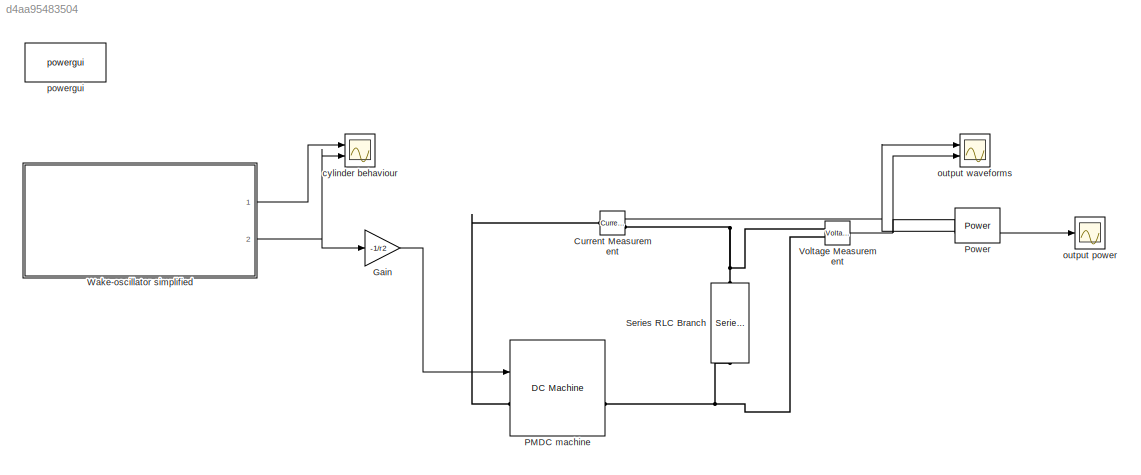
MODEL slx_d4aa95483504
KIND model
CONFIG AbsTol = auto
CONFIG EnableMultiTasking = off
CONFIG FixedStep = 0.0001
CONFIG MaxStep = auto
CONFIG MinStep = auto
CONFIG RelTol = 1e-3
CONFIG SampleTimeConstraint = Unconstrained
CONFIG Solver = FixedStepAuto
CONFIG SolverName = FixedStepAuto
CONFIG StartTime = 0.0
CONFIG StopTime = 50
BLOCK [Reference] Current Measurement  REF=powerlib/Measurements/Current Measurement
  Ports = [0, 1, 0, 0, 0, 1, 1]
  SourceBlock = powerlib/Measurements/Current Measurement
  SourceProductBaseCode = PS
  SourceProductName = Simscape Electrical
  SourceType = Current Measurement
  UserDataPersistent = on
BLOCK [Gain] Gain
  Gain = -1/r2
  OutDataTypeStr = Inherit: Inherit via internal rule
  ParamDataTypeStr = Inherit: Inherit via internal rule
  SaturateOnIntegerOverflow = off
BLOCK [Reference] PMDC machine   REF=powerlib/Machines/DC Machine
  Ports = [1, 1, 0, 0, 0, 1, 1]
  SourceBlock = powerlib/Machines/DC Machine
  SourceProductBaseCode = PS
  SourceProductName = Simscape Electrical
  SourceType = DC machine
BLOCK [Reference] Power  REF=powerlib_meascontrol/Measurements/Power
  Ports = [2, 2]
  SourceBlock = powerlib_meascontrol/Measurements/Power
  SourceProductBaseCode = PS
  SourceProductName = Simscape Electrical
  SourceType = Power
BLOCK [Reference] Series RLC Branch  REF=powerlib/Elements/Series RLC Branch
  Ports = [0, 0, 0, 0, 0, 1, 1]
  SourceBlock = powerlib/Elements/Series RLC Branch
  SourceProductBaseCode = PS
  SourceProductName = Simscape Electrical
  SourceType = Series RLC Branch
BLOCK [Reference] Voltage Measurement  REF=powerlib/Measurements/Voltage Measurement
  Ports = [0, 1, 0, 0, 0, 2]
  SourceBlock = powerlib/Measurements/Voltage Measurement
  SourceProductBaseCode = PS
  SourceProductName = Simscape Electrical
  SourceType = Voltage Measurement
  UserDataPersistent = on
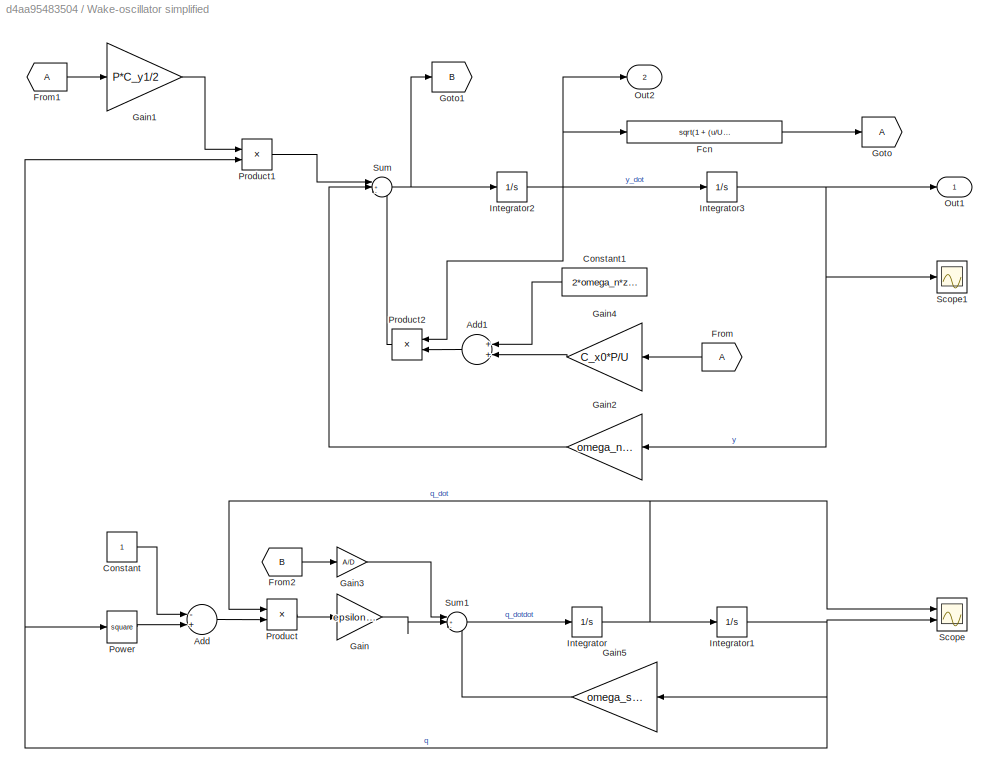
BLOCK [SubSystem] Wake-oscillator simplified
  Ports = [0, 2]
  RequestExecContextInheritance = off
BLOCK [Sum] Wake-oscillator simplified/Add
  InputSameDT = off
  Inputs = -+
  OutDataTypeStr = Inherit: Inherit via internal rule
  Ports = [2, 1]
  SaturateOnIntegerOverflow = off
BLOCK [Sum] Wake-oscillator simplified/Add1
  InputSameDT = off
  OutDataTypeStr = Inherit: Inherit via internal rule
  Ports = [2, 1]
  SaturateOnIntegerOverflow = off
BLOCK [Constant] Wake-oscillator simplified/Constant
BLOCK [Constant] Wake-oscillator simplified/Constant1
  Value = 2*omega_n*zeta
BLOCK [Fcn] Wake-oscillator simplified/Fcn
  Expr = sqrt(1 + (u/U)^2)
BLOCK [From] Wake-oscillator simplified/From
BLOCK [From] Wake-oscillator simplified/From1
BLOCK [From] Wake-oscillator simplified/From2
  GotoTag = B
BLOCK [Gain] Wake-oscillator simplified/Gain
  Gain = epsilon*omega_s
  OutDataTypeStr = Inherit: Inherit via internal rule
  ParamDataTypeStr = Inherit: Inherit via internal rule
  SaturateOnIntegerOverflow = off
BLOCK [Gain] Wake-oscillator simplified/Gain1
  Gain = P*C_y1/2
  OutDataTypeStr = Inherit: Inherit via internal rule
  ParamDataTypeStr = Inherit: Inherit via internal rule
  SaturateOnIntegerOverflow = off
BLOCK [Gain] Wake-oscillator simplified/Gain2
  Gain = omega_n^2
  OutDataTypeStr = Inherit: Inherit via internal rule
  ParamDataTypeStr = Inherit: Inherit via internal rule
  SaturateOnIntegerOverflow = off
BLOCK [Gain] Wake-oscillator simplified/Gain3
  Gain = A/D
  OutDataTypeStr = Inherit: Inherit via internal rule
  ParamDataTypeStr = Inherit: Inherit via internal rule
  SaturateOnIntegerOverflow = off
BLOCK [Gain] Wake-oscillator simplified/Gain4
  Gain = C_x0*P/U
  OutDataTypeStr = Inherit: Inherit via internal rule
  ParamDataTypeStr = Inherit: Inherit via internal rule
  SaturateOnIntegerOverflow = off
BLOCK [Gain] Wake-oscillator simplified/Gain5
  Gain = omega_s^2
  OutDataTypeStr = Inherit: Inherit via internal rule
  ParamDataTypeStr = Inherit: Inherit via internal rule
  SaturateOnIntegerOverflow = off
BLOCK [Goto] Wake-oscillator simplified/Goto
BLOCK [Goto] Wake-oscillator simplified/Goto1
  GotoTag = B
BLOCK [Integrator] Wake-oscillator simplified/Integrator
  Ports = [1, 1]
BLOCK [Integrator] Wake-oscillator simplified/Integrator1
  InitialCondition = 0.001
  Ports = [1, 1]
BLOCK [Integrator] Wake-oscillator simplified/Integrator2
  Ports = [1, 1]
BLOCK [Integrator] Wake-oscillator simplified/Integrator3
  Ports = [1, 1]
BLOCK [Outport] Wake-oscillator simplified/Out1
  IconDisplay = Signal name
BLOCK [Outport] Wake-oscillator simplified/Out2
  IconDisplay = Signal name
  Port = 2
BLOCK [Math] Wake-oscillator simplified/Power
  Operator = square
  Ports = [1, 1]
BLOCK [Product] Wake-oscillator simplified/Product
  InputSameDT = off
  OutDataTypeStr = Inherit: Inherit via internal rule
  Ports = [2, 1]
  RndMeth = Floor
  SaturateOnIntegerOverflow = off
BLOCK [Product] Wake-oscillator simplified/Product1
  InputSameDT = off
  OutDataTypeStr = Inherit: Inherit via internal rule
  Ports = [2, 1]
  RndMeth = Floor
  SaturateOnIntegerOverflow = off
BLOCK [Product] Wake-oscillator simplified/Product2
  InputSameDT = off
  OutDataTypeStr = Inherit: Inherit via internal rule
  Ports = [2, 1]
  RndMeth = Floor
  SaturateOnIntegerOverflow = off
BLOCK [Scope] Wake-oscillator simplified/Scope
  Floating = off
  NumInputPorts = 2
  Ports = [2]
  ScopeSpecificationString = Simulink.scopes.TimeScopeBlockCfg('CurrentConfiguration', extmgr.ConfigurationSet(extmgr.Configuration('Core','General UI',true),extmgr.Configuration('Core','Source UI',true),extmgr.Configuration('Sources','WiredSimulink',true),extmgr.Configuration('Visuals','Time Domain',true,'SerializedDisplays',{struct('MinYLimReal','-2.85224','MaxYLimReal','2.85224','YLabelReal','','MinYLimMag','0.00000','MaxY...<+1359ch>
BLOCK [Scope] Wake-oscillator simplified/Scope1
  Floating = off
  NumInputPorts = 1
  Ports = [1]
  ScopeSpecificationString = Simulink.scopes.TimeScopeBlockCfg('CurrentConfiguration', extmgr.ConfigurationSet(extmgr.Configuration('Core','General UI',true),extmgr.Configuration('Core','Source UI',true),extmgr.Configuration('Sources','WiredSimulink',true,'DataLoggingVariableName','ScopeData1'),extmgr.Configuration('Visuals','Time Domain',true,'SerializedDisplays',{struct('MinYLimReal','-0.07666','MaxYLimReal','0.07666','YLab...<+2008ch>
BLOCK [Sum] Wake-oscillator simplified/Sum
  IconShape = round
  InputSameDT = off
  Inputs = |+--
  OutDataTypeStr = Inherit: Inherit via internal rule
  Ports = [3, 1]
  SaturateOnIntegerOverflow = off
BLOCK [Sum] Wake-oscillator simplified/Sum1
  IconShape = round
  InputSameDT = off
  Inputs = |+--
  OutDataTypeStr = Inherit: Inherit via internal rule
  Ports = [3, 1]
  SaturateOnIntegerOverflow = off
BLOCK [Scope] cylinder behaviour
  Floating = off
  NumInputPorts = 2
  Ports = [2]
  ScopeSpecificationString = Simulink.scopes.TimeScopeBlockCfg('CurrentConfiguration', extmgr.ConfigurationSet(extmgr.Configuration('Core','General UI',true),extmgr.Configuration('Core','Source UI',true),extmgr.Configuration('Sources','WiredSimulink',true,'DataLoggingVariableName','ScopeData1'),extmgr.Configuration('Visuals','Time Domain',true,'SerializedDisplays',{struct('MinYLimReal','-0.48569','MaxYLimReal','0.48569','YLab...<+1831ch>
BLOCK [Scope] output power
  Floating = off
  NumInputPorts = 1
  Ports = [1]
  ScopeSpecificationString = Simulink.scopes.TimeScopeBlockCfg('CurrentConfiguration', extmgr.ConfigurationSet(extmgr.Configuration('Core','General UI',true),extmgr.Configuration('Core','Source UI',true),extmgr.Configuration('Sources','WiredSimulink',true,'DataLoggingVariableName','ScopeData2'),extmgr.Configuration('Visuals','Time Domain',true,'SerializedDisplays',{struct('MinYLimReal','-0.00936','MaxYLimReal','0.08427','YLab...<+1711ch>
BLOCK [Scope] output waveforms
  Floating = off
  NumInputPorts = 2
  Ports = [2]
  ScopeSpecificationString = Simulink.scopes.TimeScopeBlockCfg('CurrentConfiguration', extmgr.ConfigurationSet(extmgr.Configuration('Core','General UI',true),extmgr.Configuration('Core','Source UI',true),extmgr.Configuration('Sources','WiredSimulink',true,'DataLoggingVariableName','ScopeData3'),extmgr.Configuration('Visuals','Time Domain',true,'SerializedDisplays',{struct('MinYLimReal','-8.54807','MaxYLimReal','8.54855','YLab...<+1810ch>
BLOCK [Reference] powergui  REF=powerlib/powergui
  Ports = []
  Priority = 1
  SourceBlock = powerlib/powergui
  SourceProductBaseCode = PS
  SourceProductName = Simscape Electrical
  SourceType = PSB option menu block
NET Current Measurement:1 -> Power:2, output waveforms:1
LINE Gain:1 -> PMDC machine :1
LINE Power:1 -> output power:1
NET Voltage Measurement:1 -> Power:1, output waveforms:2
LINE Wake-oscillator simplified/Add1:1 -> Wake-oscillator simplified/Product2:2
LINE Wake-oscillator simplified/Add:1 -> Wake-oscillator simplified/Product:2
LINE Wake-oscillator simplified/Constant1:1 -> Wake-oscillator simplified/Add1:1
LINE Wake-oscillator simplified/Constant:1 -> Wake-oscillator simplified/Add:1
LINE Wake-oscillator simplified/Fcn:1 -> Wake-oscillator simplified/Goto:1
LINE Wake-oscillator simplified/From1:1 -> Wake-oscillator simplified/Gain1:1
LINE Wake-oscillator simplified/From2:1 -> Wake-oscillator simplified/Gain3:1
LINE Wake-oscillator simplified/From:1 -> Wake-oscillator simplified/Gain4:1
LINE Wake-oscillator simplified/Gain1:1 -> Wake-oscillator simplified/Product1:1
LINE Wake-oscillator simplified/Gain2:1 -> Wake-oscillator simplified/Sum:2
LINE Wake-oscillator simplified/Gain3:1 -> Wake-oscillator simplified/Sum1:1
LINE Wake-oscillator simplified/Gain4:1 -> Wake-oscillator simplified/Add1:2
LINE Wake-oscillator simplified/Gain5:1 -> Wake-oscillator simplified/Sum1:3
LINE Wake-oscillator simplified/Gain:1 -> Wake-oscillator simplified/Sum1:2
NET Wake-oscillator simplified/Integrator1:1 -> Wake-oscillator simplified/Gain5:1, Wake-oscillator simplified/Power:1, Wake-oscillator simplified/Product1:2, Wake-oscillator simplified/Scope:2
NET Wake-oscillator simplified/Integrator2:1 -> Wake-oscillator simplified/Fcn:1, Wake-oscillator simplified/Integrator3:1, Wake-oscillator simplified/Out2:1, Wake-oscillator simplified/Product2:1
NET Wake-oscillator simplified/Integrator3:1 -> Wake-oscillator simplified/Gain2:1, Wake-oscillator simplified/Out1:1, Wake-oscillator simplified/Scope1:1
NET Wake-oscillator simplified/Integrator:1 -> Wake-oscillator simplified/Integrator1:1, Wake-oscillator simplified/Product:1, Wake-oscillator simplified/Scope:1
LINE Wake-oscillator simplified/Power:1 -> Wake-oscillator simplified/Add:2
LINE Wake-oscillator simplified/Product1:1 -> Wake-oscillator simplified/Sum:1
LINE Wake-oscillator simplified/Product2:1 -> Wake-oscillator simplified/Sum:3
LINE Wake-oscillator simplified/Product:1 -> Wake-oscillator simplified/Gain:1
LINE Wake-oscillator simplified/Sum1:1 -> Wake-oscillator simplified/Integrator:1
NET Wake-oscillator simplified/Sum:1 -> Wake-oscillator simplified/Goto1:1, Wake-oscillator simplified/Integrator2:1
LINE Wake-oscillator simplified:1 -> cylinder behaviour:1
NET Wake-oscillator simplified:2 -> Gain:1, cylinder behaviour:2
PLINE Current Measurement:LConn1 -- PMDC machine :LConn1
PNET net1: Current Measurement:RConn1 -- Series RLC Branch:LConn1 -- Voltage Measurement:LConn1
PNET net2: PMDC machine :RConn1 -- Series RLC Branch:RConn1 -- Voltage Measurement:LConn2
note: NET lines group one-source signal fan-out (src -> all destinations, sorted); 1:1 wires keep LINE; PNET lines group multi-terminal physical nets as a canonical sorted terminal list (undirected conserving connections); 2-terminal nets keep the pairwise PLINE form
